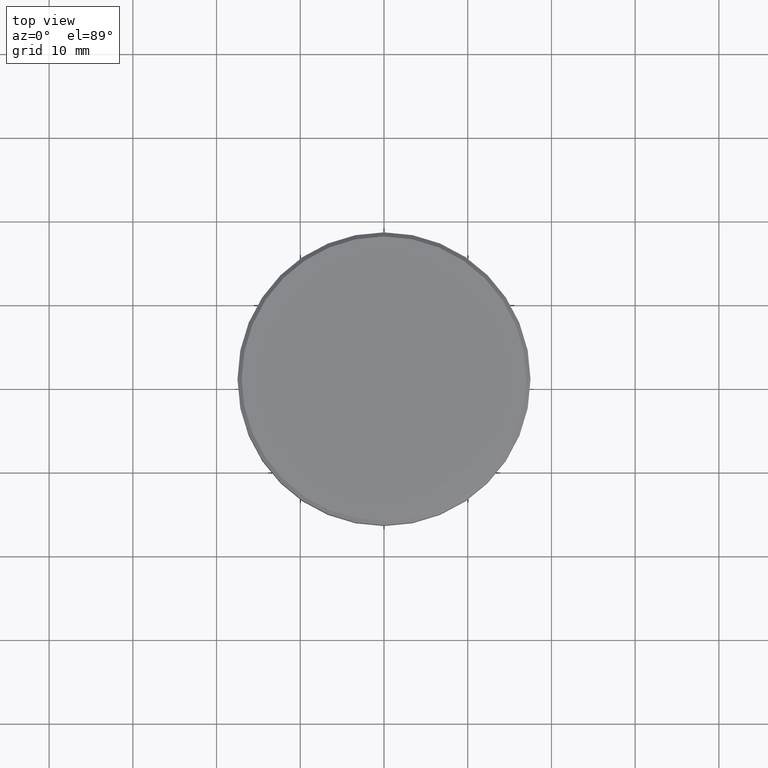
[diagram: clean part render]
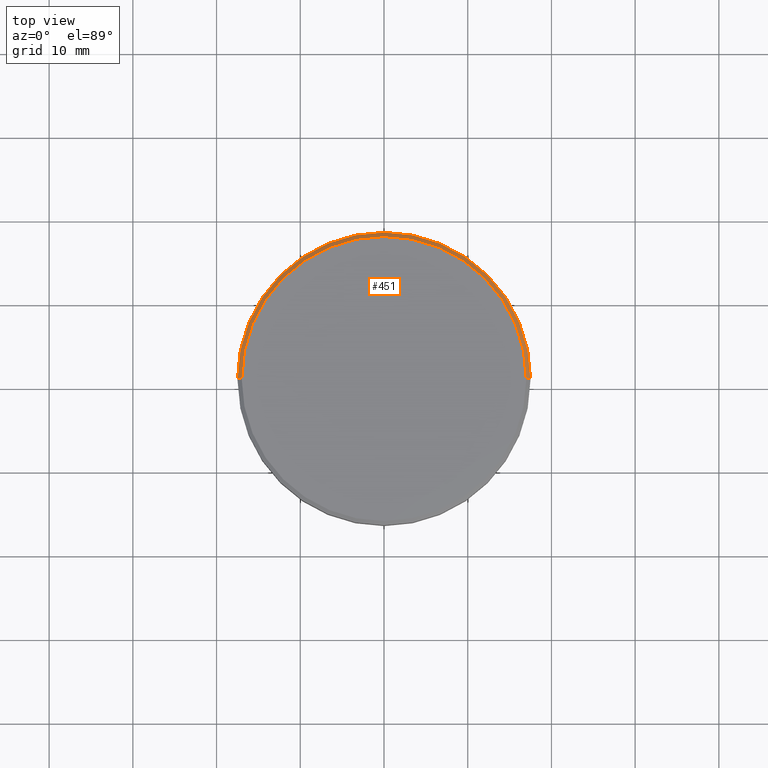
[diagram: same view with one face highlighted and labeled with its STEP entity id]
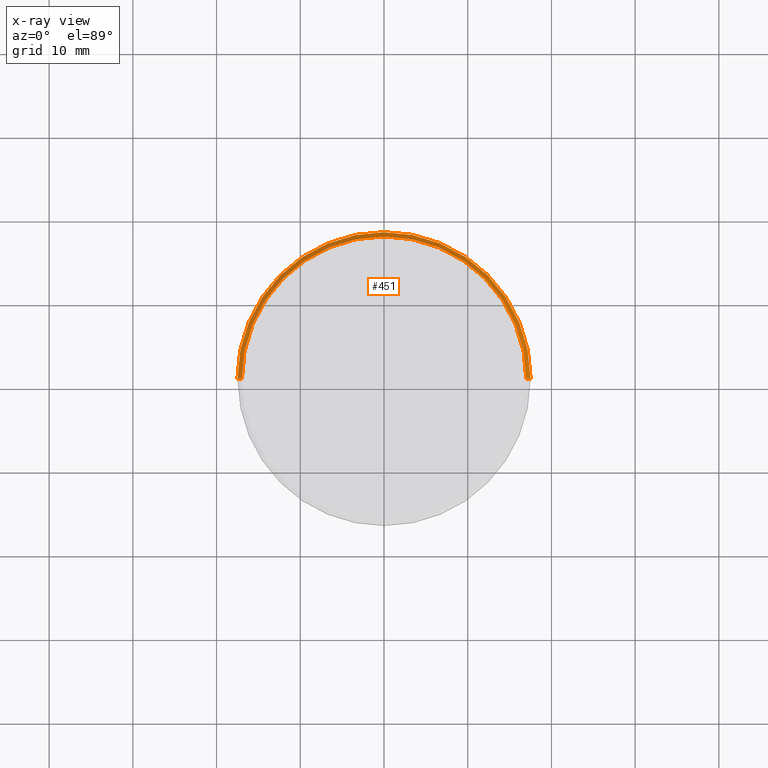
[diagram: x-ray of the same camera — body ghosted, the highlighted face saturated]
A machine part, top view. The second image highlights one B-rep face of the part: STEP entity #451.
The next image is the same camera in x-ray: the body ghosted, the highlighted face saturated — about 0% of this face is hidden behind the body in this view.
In plain terms, the highlighted conical surface has half-angle 45 deg.
Its self-contained STEP definition (entity closure, byte-faithful):
#9 = CARTESIAN_POINT ( 'NONE',  ( -16.99999999999999289, 0.000000000000000000, 0.000000000000000000 ) ) ;
#155 = CARTESIAN_POINT ( 'NONE',  ( 0.000000000000000000, 0.000000000000000000, -0.5000000000000143219 ) ) ;
#177 = AXIS2_PLACEMENT_3D ( 'NONE', #990, #373, #910 ) ;
#199 = LINE ( 'NONE', #1109, #428 ) ;
#211 = CIRCLE ( 'NONE', #177, 16.99999999999999289 ) ;
#224 = CARTESIAN_POINT ( 'NONE',  ( 16.99999999999999289, 2.081899558550499885E-15, 0.000000000000000000 ) ) ;
#261 = ORIENTED_EDGE ( 'NONE', *, *, #1068, .F. ) ;
#277 = CARTESIAN_POINT ( 'NONE',  ( -17.50000000000000000, 2.143131898507868248E-15, -0.5000000000000143219 ) ) ;
#285 = AXIS2_PLACEMENT_3D ( 'NONE', #695, #977, #952 ) ;
#322 = CONICAL_SURFACE ( 'NONE', #285, 16.99999999999999289, 0.7853981633974415066 ) ;
#337 = ORIENTED_EDGE ( 'NONE', *, *, #593, .F. ) ;
#373 = DIRECTION ( 'NONE',  ( -0.000000000000000000, -0.000000000000000000, 1.000000000000000000 ) ) ;
#428 = VECTOR ( 'NONE', #489, 1000.000000000000000 ) ;
#430 = DIRECTION ( 'NONE',  ( 1.000000000000000000, 0.000000000000000000, 0.000000000000000000 ) ) ;
#451 = ADVANCED_FACE ( 'NONE', ( #778 ), #322, .T. ) ;
#461 = ORIENTED_EDGE ( 'NONE', *, *, #1174, .F. ) ;
#489 = DIRECTION ( 'NONE',  ( -0.7071067811865426878, 0.000000000000000000, -0.7071067811865524577 ) ) ;
#511 = LINE ( 'NONE', #224, #1003 ) ;
#581 = VERTEX_POINT ( 'NONE', #646 ) ;
#593 = EDGE_CURVE ( 'NONE', #939, #850, #199, .T. ) ;
#607 = VERTEX_POINT ( 'NONE', #830 ) ;
#613 = DIRECTION ( 'NONE',  ( 0.7071067811865426878, 8.659560562354874926E-17, -0.7071067811865524577 ) ) ;
#646 = CARTESIAN_POINT ( 'NONE',  ( 17.50000000000000000, 0.000000000000000000, -0.5000000000000143219 ) ) ;
#695 = CARTESIAN_POINT ( 'NONE',  ( 0.000000000000000000, 0.000000000000000000, 0.000000000000000000 ) ) ;
#701 = EDGE_CURVE ( 'NONE', #607, #581, #511, .T. ) ;
#778 = FACE_OUTER_BOUND ( 'NONE', #984, .T. ) ;
#830 = CARTESIAN_POINT ( 'NONE',  ( 16.99999999999999289, 2.112515728529184067E-15, 0.000000000000000000 ) ) ;
#850 = VERTEX_POINT ( 'NONE', #277 ) ;
#865 = ORIENTED_EDGE ( 'NONE', *, *, #701, .T. ) ;
#910 = DIRECTION ( 'NONE',  ( 1.000000000000000000, 0.000000000000000000, 0.000000000000000000 ) ) ;
#939 = VERTEX_POINT ( 'NONE', #9 ) ;
#952 = DIRECTION ( 'NONE',  ( -1.000000000000000000, 0.000000000000000000, 0.000000000000000000 ) ) ;
#977 = DIRECTION ( 'NONE',  ( 0.000000000000000000, 0.000000000000000000, -1.000000000000000000 ) ) ;
#984 = EDGE_LOOP ( 'NONE', ( #461, #865, #261, #337 ) ) ;
#990 = CARTESIAN_POINT ( 'NONE',  ( 0.000000000000000000, 0.000000000000000000, 0.000000000000000000 ) ) ;
#1003 = VECTOR ( 'NONE', #613, 1000.000000000000000 ) ;
#1030 = AXIS2_PLACEMENT_3D ( 'NONE', #155, #1079, #430 ) ;
#1068 = EDGE_CURVE ( 'NONE', #850, #581, #1127, .T. ) ;
#1079 = DIRECTION ( 'NONE',  ( 0.000000000000000000, 0.000000000000000000, -1.000000000000000000 ) ) ;
#1109 = CARTESIAN_POINT ( 'NONE',  ( -16.99999999999999289, 0.000000000000000000, 0.000000000000000000 ) ) ;
#1127 = CIRCLE ( 'NONE', #1030, 17.50000000000000000 ) ;
#1174 = EDGE_CURVE ( 'NONE', #607, #939, #211, .T. ) ;